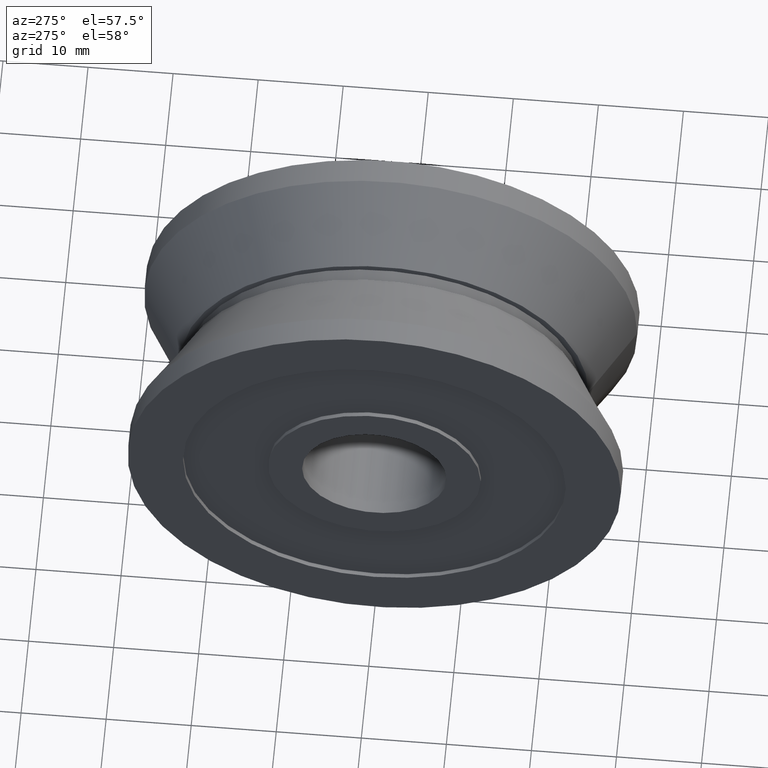
[diagram: clean part render]
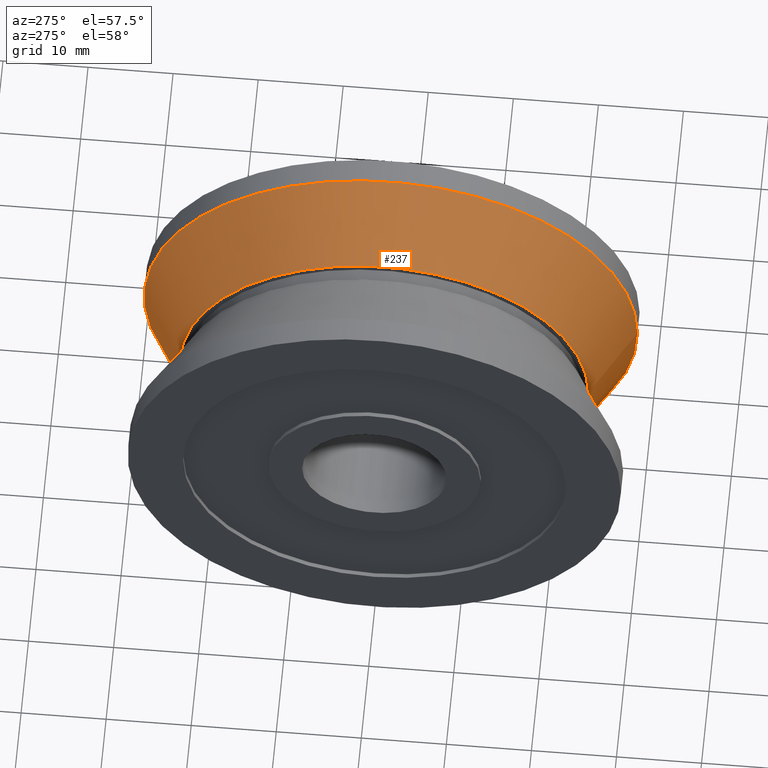
[diagram: same view with one face highlighted and labeled with its STEP entity id]
A machine part, auxiliary view. The second image highlights one B-rep face of the part: STEP entity #237.
In plain terms, the highlighted conical surface has half-angle 30 deg.
Its self-contained STEP definition (entity closure, byte-faithful):
#15=CONICAL_SURFACE('',#289,26.5007386859688,0.5235987755983);
#24=LINE('',#429,#34);
#34=VECTOR('',#357,26.5007386859688);
#65=FACE_OUTER_BOUND('',#88,.T.);
#88=EDGE_LOOP('',(#193,#194,#195,#196));
#109=CIRCLE('',#288,24.0014773719376);
#110=CIRCLE('',#290,29.);
#127=VERTEX_POINT('',#424);
#128=VERTEX_POINT('',#427);
#150=EDGE_CURVE('',#127,#127,#109,.T.);
#151=EDGE_CURVE('',#128,#128,#110,.T.);
#152=EDGE_CURVE('',#128,#127,#24,.T.);
#193=ORIENTED_EDGE('',*,*,#151,.F.);
#194=ORIENTED_EDGE('',*,*,#152,.T.);
#195=ORIENTED_EDGE('',*,*,#150,.T.);
#196=ORIENTED_EDGE('',*,*,#152,.F.);
#237=ADVANCED_FACE('',(#65),#15,.T.);
#288=AXIS2_PLACEMENT_3D('',#425,#351,#352);
#289=AXIS2_PLACEMENT_3D('',#426,#353,#354);
#290=AXIS2_PLACEMENT_3D('',#428,#355,#356);
#351=DIRECTION('center_axis',(1.,0.,0.));
#352=DIRECTION('ref_axis',(0.,1.,0.));
#353=DIRECTION('center_axis',(1.,0.,0.));
#354=DIRECTION('ref_axis',(0.,1.,0.));
#355=DIRECTION('center_axis',(1.,0.,0.));
#356=DIRECTION('ref_axis',(0.,1.,0.));
#357=DIRECTION('',(-0.866025403784438,0.500000000000001,6.12323399573677E-17));
#424=CARTESIAN_POINT('',(0.949999999999999,-24.0014773719376,-2.9393332438351E-15));
#425=CARTESIAN_POINT('Origin',(0.95,0.,0.));
#426=CARTESIAN_POINT('Origin',(5.27884757729337,0.,0.));
#427=CARTESIAN_POINT('',(9.60769515458674,-29.,-3.55147571752732E-15));
#428=CARTESIAN_POINT('Origin',(9.60769515458674,0.,0.));
#429=CARTESIAN_POINT('',(5.27884757729337,-26.5007386859688,-3.24540448068121E-15));